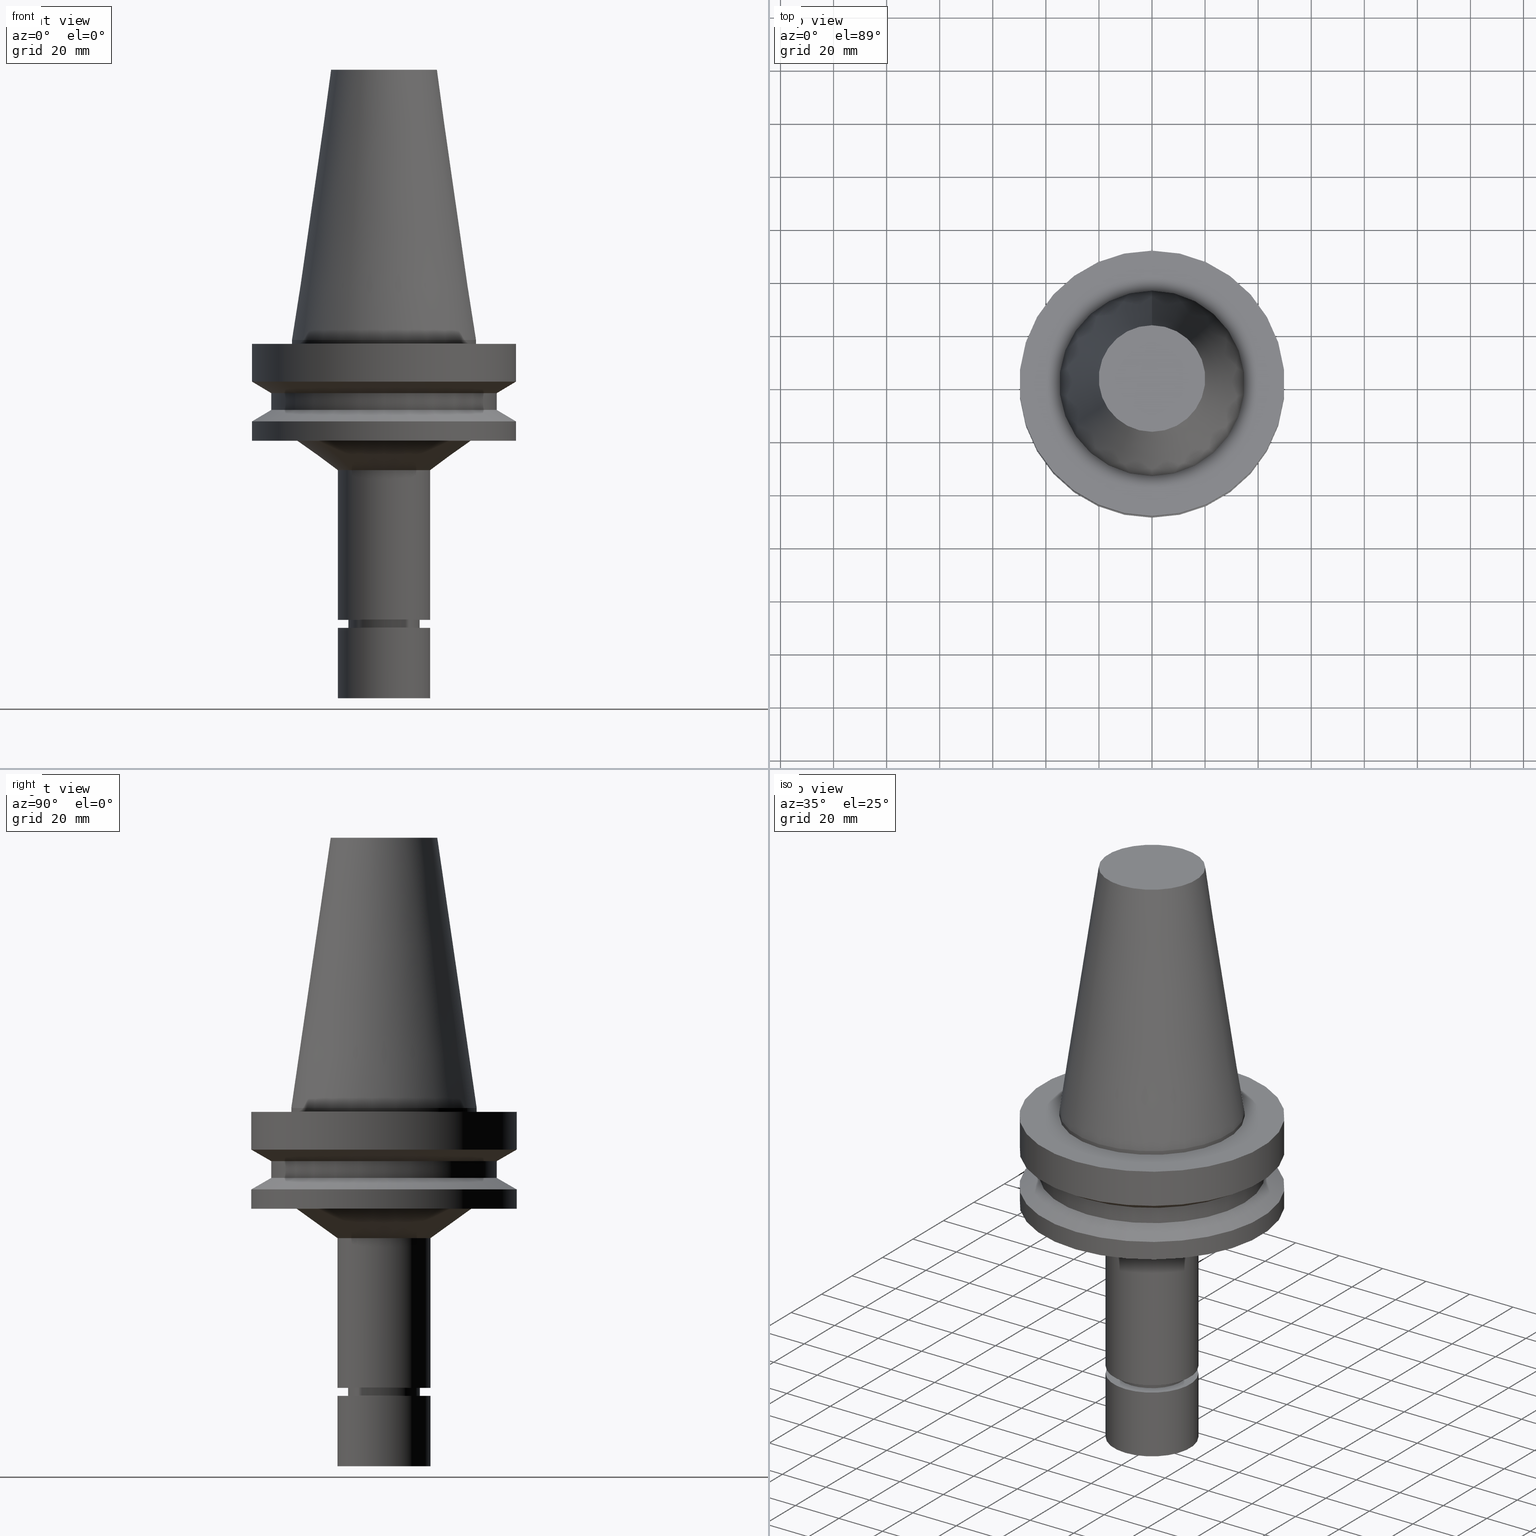
[diagram: canonical four-view strip — front | top / right | iso, engineering-drawing reading convention]
A machine part, canonical four-view strip (front | top / right | iso — engineering-drawing reading convention). The complete STEP part file that produces these views, byte-faithful:
ISO-10303-21;
HEADER;
FILE_DESCRIPTION((''),'1');
FILE_NAME('V:/90_\X2\53D65F9730C730FC30BF\X0\/00_\X2\6DE18DEF30C730FC30BF\X0\/ALL/BBT-BKUS\X2\FF76FF80FF9BFF78FF9E752852A05DE556F3\X0\201801/BBT50-MEGAER/BBT50-MEGAER20-135NL.stp','2018-02-02T08:00:37',(''),(''),'Spatial Interop R21 SP3','Kubotek KeyCreator 2011 V10.0.2 (22737)',' ');
FILE_SCHEMA(('automotive_design'));
ENDSEC;
DATA;
#1=MECHANICAL_DESIGN_GEOMETRIC_PRESENTATION_REPRESENTATION(' ',(#14,#15,#16,#17,#18,#19,#20,#21,#22,#23,#24,#25,#26,#27,#28,#29,#30,#31,#32,#33,#34,#35,#36,#37,#38,#39,#40,#41,#42,#43,#44,#45,#46,#47,#48,#49,#50,#51,#52,#53,#54,#55),#10);
#2=PRODUCT_DEFINITION_CONTEXT('',#56,'design');
#3=APPLICATION_PROTOCOL_DEFINITION('INTERNATIONAL STANDARD','automotive_design',1994,#56);
#4=PRODUCT_CATEGORY_RELATIONSHIP('NONE','NONE',#57,#58);
#5=SHAPE_DEFINITION_REPRESENTATION(#59,#60);
#6=PRODUCT_DEFINITION_CONTEXT('',#61,'design');
#7=APPLICATION_PROTOCOL_DEFINITION('INTERNATIONAL STANDARD','automotive_design',1994,#61);
#8=PRODUCT_CATEGORY_RELATIONSHIP('NONE','NONE',#62,#63);
#9=SHAPE_DEFINITION_REPRESENTATION(#64,#65);
#10= (GEOMETRIC_REPRESENTATION_CONTEXT(3)GLOBAL_UNCERTAINTY_ASSIGNED_CONTEXT((#68))GLOBAL_UNIT_ASSIGNED_CONTEXT((#70,#71,#72))REPRESENTATION_CONTEXT('NONE','WORKSPACE'));
#14=STYLED_ITEM('',(#74,#75),#76);
#15=STYLED_ITEM('',(#77,#78),#79);
#16=STYLED_ITEM('',(#80),#81);
#17=STYLED_ITEM('',(#82,#83),#84);
#18=STYLED_ITEM('',(#85,#86),#87);
#19=STYLED_ITEM('',(#88,#89),#90);
#20=STYLED_ITEM('',(#91),#92);
#21=STYLED_ITEM('',(#93),#94);
#22=STYLED_ITEM('',(#95),#96);
#23=STYLED_ITEM('',(#97,#98),#99);
#24=STYLED_ITEM('',(#100,#101),#102);
#25=STYLED_ITEM('',(#103,#104),#105);
#26=STYLED_ITEM('',(#106,#107),#108);
#27=STYLED_ITEM('',(#109),#110);
#28=STYLED_ITEM('',(#111),#112);
#29=STYLED_ITEM('',(#113,#114),#115);
#30=STYLED_ITEM('',(#116,#117),#118);
#31=STYLED_ITEM('',(#119),#120);
#32=STYLED_ITEM('',(#121),#122);
#33=STYLED_ITEM('',(#123,#124),#125);
#34=STYLED_ITEM('',(#126),#127);
#35=STYLED_ITEM('',(#128,#129),#130);
#36=STYLED_ITEM('',(#131),#132);
#37=STYLED_ITEM('',(#133,#134),#135);
#38=STYLED_ITEM('',(#136,#137),#138);
#39=STYLED_ITEM('',(#139),#140);
#40=STYLED_ITEM('',(#141,#142),#143);
#41=STYLED_ITEM('',(#144,#145),#146);
#42=STYLED_ITEM('',(#147,#148),#149);
#43=STYLED_ITEM('',(#150,#151),#152);
#44=STYLED_ITEM('',(#153),#154);
#45=STYLED_ITEM('',(#155),#156);
#46=STYLED_ITEM('',(#157),#158);
#47=STYLED_ITEM('',(#159,#160),#161);
#48=STYLED_ITEM('',(#162,#163),#164);
#49=STYLED_ITEM('',(#165),#166);
#50=STYLED_ITEM('',(#167),#168);
#51=STYLED_ITEM('',(#169),#170);
#52=STYLED_ITEM('',(#171,#172),#173);
#53=STYLED_ITEM('',(#174),#175);
#54=STYLED_ITEM('',(#176,#177),#178);
#55=STYLED_ITEM('',(#179),#180);
#56=APPLICATION_CONTEXT(' ');
#57=PRODUCT_CATEGORY('part','NONE');
#58=PRODUCT_RELATED_PRODUCT_CATEGORY('detail',' ',(#181));
#59=PRODUCT_DEFINITION_SHAPE('NONE','NONE',#182);
#60=ADVANCED_BREP_SHAPE_REPRESENTATION('Unnamed[1]',(#138,#183),#10);
#61=APPLICATION_CONTEXT(' ');
#62=PRODUCT_CATEGORY('part','NONE');
#63=PRODUCT_RELATED_PRODUCT_CATEGORY('detail',' ',(#184));
#64=PRODUCT_DEFINITION_SHAPE('NONE','NONE',#185);
#65=ADVANCED_BREP_SHAPE_REPRESENTATION('Unnamed[1]',(#90,#186),#10);
#68=UNCERTAINTY_MEASURE_WITH_UNIT(LENGTH_MEASURE(1.0E-006),#70,'','');
#70= (CONVERSION_BASED_UNIT('MILLIMETRE',#189)LENGTH_UNIT()NAMED_UNIT(#192));
#71= (NAMED_UNIT(#194)PLANE_ANGLE_UNIT()SI_UNIT($,.RADIAN.));
#72= (NAMED_UNIT(#194)SOLID_ANGLE_UNIT()SI_UNIT($,.STERADIAN.));
#74=PRESENTATION_STYLE_ASSIGNMENT((#200));
#75=PRESENTATION_STYLE_ASSIGNMENT((#201));
#76=ADVANCED_FACE('Unnamed[1]',(#202,#203),#204,.T.);
#77=PRESENTATION_STYLE_ASSIGNMENT((#205));
#78=PRESENTATION_STYLE_ASSIGNMENT((#206));
#79=ADVANCED_FACE('Unnamed[1]',(#207,#208),#209,.T.);
#80=PRESENTATION_STYLE_ASSIGNMENT((#210));
#81=EDGE_CURVE('Unnamed[1]',#211,#211,#212,.T.);
#82=PRESENTATION_STYLE_ASSIGNMENT((#213));
#83=PRESENTATION_STYLE_ASSIGNMENT((#214));
#84=ADVANCED_FACE('Unnamed[1]',(#215,#216),#217,.T.);
#85=PRESENTATION_STYLE_ASSIGNMENT((#218));
#86=PRESENTATION_STYLE_ASSIGNMENT((#219));
#87=ADVANCED_FACE('Unnamed[1]',(#220,#221),#222,.T.);
#88=PRESENTATION_STYLE_ASSIGNMENT((#223));
#89=PRESENTATION_STYLE_ASSIGNMENT((#224));
#90=MANIFOLD_SOLID_BREP('Unnamed[1]',#225);
#91=PRESENTATION_STYLE_ASSIGNMENT((#226));
#92=EDGE_CURVE('Unnamed[1]',#227,#227,#228,.T.);
#93=PRESENTATION_STYLE_ASSIGNMENT((#229));
#94=EDGE_CURVE('Unnamed[1]',#230,#230,#231,.T.);
#95=PRESENTATION_STYLE_ASSIGNMENT((#232));
#96=EDGE_CURVE('Unnamed[1]',#233,#233,#234,.T.);
#97=PRESENTATION_STYLE_ASSIGNMENT((#235));
#98=PRESENTATION_STYLE_ASSIGNMENT((#236));
#99=ADVANCED_FACE('Unnamed[1]',(#237,#238),#239,.T.);
#100=PRESENTATION_STYLE_ASSIGNMENT((#240));
#101=PRESENTATION_STYLE_ASSIGNMENT((#241));
#102=ADVANCED_FACE('Unnamed[1]',(#242,#243),#244,.T.);
#103=PRESENTATION_STYLE_ASSIGNMENT((#245));
#104=PRESENTATION_STYLE_ASSIGNMENT((#246));
#105=ADVANCED_FACE('Unnamed[1]',(#247,#248),#249,.T.);
#106=PRESENTATION_STYLE_ASSIGNMENT((#250));
#107=PRESENTATION_STYLE_ASSIGNMENT((#251));
#108=ADVANCED_FACE('Unnamed[1]',(#252),#253,.T.);
#109=PRESENTATION_STYLE_ASSIGNMENT((#254));
#110=EDGE_CURVE('Unnamed[1]',#255,#255,#256,.T.);
#111=PRESENTATION_STYLE_ASSIGNMENT((#257));
#112=EDGE_CURVE('Unnamed[1]',#258,#258,#259,.T.);
#113=PRESENTATION_STYLE_ASSIGNMENT((#260));
#114=PRESENTATION_STYLE_ASSIGNMENT((#261));
#115=ADVANCED_FACE('Unnamed[1]',(#262,#263),#264,.T.);
#116=PRESENTATION_STYLE_ASSIGNMENT((#265));
#117=PRESENTATION_STYLE_ASSIGNMENT((#266));
#118=ADVANCED_FACE('Unnamed[1]',(#267),#268,.T.);
#119=PRESENTATION_STYLE_ASSIGNMENT((#269));
#120=EDGE_CURVE('Unnamed[1]',#270,#270,#271,.T.);
#121=PRESENTATION_STYLE_ASSIGNMENT((#272));
#122=EDGE_CURVE('Unnamed[1]',#273,#273,#274,.T.);
#123=PRESENTATION_STYLE_ASSIGNMENT((#275));
#124=PRESENTATION_STYLE_ASSIGNMENT((#276));
#125=ADVANCED_FACE('Unnamed[1]',(#277,#278),#279,.T.);
#126=PRESENTATION_STYLE_ASSIGNMENT((#280));
#127=EDGE_CURVE('Unnamed[1]',#281,#281,#282,.T.);
#128=PRESENTATION_STYLE_ASSIGNMENT((#283));
#129=PRESENTATION_STYLE_ASSIGNMENT((#284));
#130=ADVANCED_FACE('Unnamed[1]',(#285,#286),#287,.T.);
#131=PRESENTATION_STYLE_ASSIGNMENT((#288));
#132=EDGE_CURVE('Unnamed[1]',#289,#289,#290,.T.);
#133=PRESENTATION_STYLE_ASSIGNMENT((#291));
#134=PRESENTATION_STYLE_ASSIGNMENT((#292));
#135=ADVANCED_FACE('Unnamed[1]',(#293,#294),#295,.T.);
#136=PRESENTATION_STYLE_ASSIGNMENT((#296));
#137=PRESENTATION_STYLE_ASSIGNMENT((#297));
#138=MANIFOLD_SOLID_BREP('Unnamed[1]',#298);
#139=PRESENTATION_STYLE_ASSIGNMENT((#299));
#140=EDGE_CURVE('Unnamed[1]',#300,#300,#301,.T.);
#141=PRESENTATION_STYLE_ASSIGNMENT((#302));
#142=PRESENTATION_STYLE_ASSIGNMENT((#303));
#143=ADVANCED_FACE('Unnamed[1]',(#304,#305),#306,.T.);
#144=PRESENTATION_STYLE_ASSIGNMENT((#307));
#145=PRESENTATION_STYLE_ASSIGNMENT((#308));
#146=ADVANCED_FACE('Unnamed[1]',(#309),#310,.T.);
#147=PRESENTATION_STYLE_ASSIGNMENT((#311));
#148=PRESENTATION_STYLE_ASSIGNMENT((#312));
#149=ADVANCED_FACE('Unnamed[1]',(#313,#314),#315,.T.);
#150=PRESENTATION_STYLE_ASSIGNMENT((#316));
#151=PRESENTATION_STYLE_ASSIGNMENT((#317));
#152=ADVANCED_FACE('Unnamed[1]',(#318,#319),#320,.T.);
#153=PRESENTATION_STYLE_ASSIGNMENT((#321));
#154=EDGE_CURVE('Unnamed[1]',#322,#322,#323,.T.);
#155=PRESENTATION_STYLE_ASSIGNMENT((#324));
#156=EDGE_CURVE('Unnamed[1]',#325,#325,#326,.T.);
#157=PRESENTATION_STYLE_ASSIGNMENT((#327));
#158=EDGE_CURVE('Unnamed[1]',#328,#328,#329,.T.);
#159=PRESENTATION_STYLE_ASSIGNMENT((#330));
#160=PRESENTATION_STYLE_ASSIGNMENT((#331));
#161=ADVANCED_FACE('Unnamed[1]',(#332,#333),#334,.T.);
#162=PRESENTATION_STYLE_ASSIGNMENT((#335));
#163=PRESENTATION_STYLE_ASSIGNMENT((#336));
#164=ADVANCED_FACE('Unnamed[1]',(#337,#338),#339,.T.);
#165=PRESENTATION_STYLE_ASSIGNMENT((#340));
#166=EDGE_CURVE('Unnamed[1]',#341,#341,#342,.T.);
#167=PRESENTATION_STYLE_ASSIGNMENT((#343));
#168=EDGE_CURVE('Unnamed[1]',#344,#344,#345,.T.);
#169=PRESENTATION_STYLE_ASSIGNMENT((#346));
#170=EDGE_CURVE('Unnamed[1]',#347,#347,#348,.T.);
#171=PRESENTATION_STYLE_ASSIGNMENT((#349));
#172=PRESENTATION_STYLE_ASSIGNMENT((#350));
#173=ADVANCED_FACE('Unnamed[1]',(#351),#352,.T.);
#174=PRESENTATION_STYLE_ASSIGNMENT((#353));
#175=EDGE_CURVE('Unnamed[1]',#354,#354,#355,.T.);
#176=PRESENTATION_STYLE_ASSIGNMENT((#356));
#177=PRESENTATION_STYLE_ASSIGNMENT((#357));
#178=ADVANCED_FACE('Unnamed[1]',(#358,#359),#360,.T.);
#179=PRESENTATION_STYLE_ASSIGNMENT((#361));
#180=EDGE_CURVE('Unnamed[1]',#362,#362,#363,.T.);
#181=PRODUCT('Unnamed[1]','Unnamed[1]','PART-Unnamed[1]-DESC',(#364));
#182=PRODUCT_DEFINITION('NONE','NONE',#365,#2);
#183=AXIS2_PLACEMENT_3D('',#366,#367,#368);
#184=PRODUCT('Unnamed[1]','Unnamed[1]','PART-Unnamed[1]-DESC',(#369));
#185=PRODUCT_DEFINITION('NONE','NONE',#370,#6);
#186=AXIS2_PLACEMENT_3D('',#371,#372,#373);
#189=LENGTH_MEASURE_WITH_UNIT(LENGTH_MEASURE(1.0),#374);
#192=DIMENSIONAL_EXPONENTS(1.0,0.0,0.0,0.0,0.0,0.0,0.0);
#194=DIMENSIONAL_EXPONENTS(0.0,0.0,0.0,0.0,0.0,0.0,0.0);
#200=SURFACE_STYLE_USAGE(.BOTH.,#375);
#201=CURVE_STYLE('',#376,POSITIVE_LENGTH_MEASURE(1000.0),#377);
#202=FACE_BOUND('',#378,.T.);
#203=FACE_BOUND('',#379,.T.);
#204=CYLINDRICAL_SURFACE('',#380,42.5);
#205=SURFACE_STYLE_USAGE(.BOTH.,#381);
#206=CURVE_STYLE('',#382,POSITIVE_LENGTH_MEASURE(1000.0),#383);
#207=FACE_BOUND('',#384,.T.);
#208=FACE_BOUND('',#385,.T.);
#209=CONICAL_SURFACE('',#386,27.5020833325942,0.144812498253157);
#210=CURVE_STYLE('',#387,POSITIVE_LENGTH_MEASURE(1000.0),#388);
#211=VERTEX_POINT('',#389);
#212=CIRCLE('',#390,13.4999999999908);
#213=SURFACE_STYLE_USAGE(.BOTH.,#391);
#214=CURVE_STYLE('',#392,POSITIVE_LENGTH_MEASURE(1000.0),#393);
#215=FACE_BOUND('',#394,.T.);
#216=FACE_BOUND('',#395,.T.);
#217=CONICAL_SURFACE('',#396,25.1818898842094,0.946630035979765);
#218=SURFACE_STYLE_USAGE(.BOTH.,#397);
#219=CURVE_STYLE('',#398,POSITIVE_LENGTH_MEASURE(1000.0),#399);
#220=FACE_BOUND('',#400,.T.);
#221=FACE_BOUND('',#401,.T.);
#222=CYLINDRICAL_SURFACE('',#402,34.925);
#223=SURFACE_STYLE_USAGE(.BOTH.,#403);
#224=CURVE_STYLE('',#404,POSITIVE_LENGTH_MEASURE(1000.0),#405);
#225=CLOSED_SHELL('',(#146,#108,#102));
#226=CURVE_STYLE('',#406,POSITIVE_LENGTH_MEASURE(1000.0),#407);
#227=VERTEX_POINT('',#408);
#228=CIRCLE('',#409,12.4999999999998);
#229=CURVE_STYLE('',#410,POSITIVE_LENGTH_MEASURE(1000.0),#411);
#230=VERTEX_POINT('',#412);
#231=CIRCLE('',#413,20.0791666651884);
#232=CURVE_STYLE('',#414,POSITIVE_LENGTH_MEASURE(1000.0),#415);
#233=VERTEX_POINT('',#416);
#234=CIRCLE('',#417,50.0);
#235=SURFACE_STYLE_USAGE(.BOTH.,#418);
#236=CURVE_STYLE('',#419,POSITIVE_LENGTH_MEASURE(1000.0),#420);
#237=FACE_BOUND('',#421,.T.);
#238=FACE_BOUND('',#422,.T.);
#239=CYLINDRICAL_SURFACE('',#423,13.4999999999956);
#240=SURFACE_STYLE_USAGE(.BOTH.,#424);
#241=CURVE_STYLE('',#425,POSITIVE_LENGTH_MEASURE(1000.0),#426);
#242=FACE_BOUND('',#427,.T.);
#243=FACE_BOUND('',#428,.T.);
#244=CYLINDRICAL_SURFACE('',#429,17.5);
#245=SURFACE_STYLE_USAGE(.BOTH.,#430);
#246=CURVE_STYLE('',#431,POSITIVE_LENGTH_MEASURE(1000.0),#432);
#247=FACE_BOUND('',#433,.T.);
#248=FACE_BOUND('',#434,.T.);
#249=CYLINDRICAL_SURFACE('',#435,50.0);
#250=SURFACE_STYLE_USAGE(.BOTH.,#436);
#251=CURVE_STYLE('',#437,POSITIVE_LENGTH_MEASURE(1000.0),#438);
#252=FACE_OUTER_BOUND('',#439,.T.);
#253=PLANE('',#440);
#254=CURVE_STYLE('',#441,POSITIVE_LENGTH_MEASURE(1000.0),#442);
#255=VERTEX_POINT('',#443);
#256=CIRCLE('',#444,12.4999999999999);
#257=CURVE_STYLE('',#445,POSITIVE_LENGTH_MEASURE(1000.0),#446);
#258=VERTEX_POINT('',#447);
#259=CIRCLE('',#448,17.5);
#260=SURFACE_STYLE_USAGE(.BOTH.,#449);
#261=CURVE_STYLE('',#450,POSITIVE_LENGTH_MEASURE(1000.0),#451);
#262=FACE_BOUND('',#452,.T.);
#263=FACE_OUTER_BOUND('',#453,.T.);
#264=PLANE('',#454);
#265=SURFACE_STYLE_USAGE(.BOTH.,#455);
#266=CURVE_STYLE('',#456,POSITIVE_LENGTH_MEASURE(1000.0),#457);
#267=FACE_OUTER_BOUND('',#458,.T.);
#268=PLANE('',#459);
#269=CURVE_STYLE('',#460,POSITIVE_LENGTH_MEASURE(1000.0),#461);
#270=VERTEX_POINT('',#462);
#271=CIRCLE('',#463,50.0);
#272=CURVE_STYLE('',#464,POSITIVE_LENGTH_MEASURE(1000.0),#465);
#273=VERTEX_POINT('',#466);
#274=CIRCLE('',#467,34.925);
#275=SURFACE_STYLE_USAGE(.BOTH.,#468);
#276=CURVE_STYLE('',#469,POSITIVE_LENGTH_MEASURE(1000.0),#470);
#277=FACE_BOUND('',#471,.T.);
#278=FACE_BOUND('',#472,.T.);
#279=CONICAL_SURFACE('',#473,46.25,1.04719755108882);
#280=CURVE_STYLE('',#474,POSITIVE_LENGTH_MEASURE(1000.0),#475);
#281=VERTEX_POINT('',#476);
#282=CIRCLE('',#477,42.5);
#283=SURFACE_STYLE_USAGE(.BOTH.,#478);
#284=CURVE_STYLE('',#479,POSITIVE_LENGTH_MEASURE(1000.0),#480);
#285=FACE_BOUND('',#481,.T.);
#286=FACE_BOUND('',#482,.T.);
#287=CYLINDRICAL_SURFACE('',#483,50.0);
#288=CURVE_STYLE('',#484,POSITIVE_LENGTH_MEASURE(1000.0),#485);
#289=VERTEX_POINT('',#486);
#290=CIRCLE('',#487,50.0);
#291=SURFACE_STYLE_USAGE(.BOTH.,#488);
#292=CURVE_STYLE('',#489,POSITIVE_LENGTH_MEASURE(1000.0),#490);
#293=FACE_BOUND('',#491,.T.);
#294=FACE_BOUND('',#492,.T.);
#295=CYLINDRICAL_SURFACE('',#493,12.4999999999999);
#296=SURFACE_STYLE_USAGE(.BOTH.,#494);
#297=CURVE_STYLE('',#495,POSITIVE_LENGTH_MEASURE(1000.0),#496);
#298=CLOSED_SHELL('',(#118,#164,#135,#161,#99,#178,#143,#84,#152,#130,#125,#76,#149,#105,#115,#87,#79,#173));
#299=CURVE_STYLE('',#497,POSITIVE_LENGTH_MEASURE(1000.0),#498);
#300=VERTEX_POINT('',#499);
#301=CIRCLE('',#500,17.5);
#302=SURFACE_STYLE_USAGE(.BOTH.,#501);
#303=CURVE_STYLE('',#502,POSITIVE_LENGTH_MEASURE(1000.0),#503);
#304=FACE_BOUND('',#504,.T.);
#305=FACE_BOUND('',#505,.T.);
#306=CYLINDRICAL_SURFACE('',#506,17.4999999999996);
#307=SURFACE_STYLE_USAGE(.BOTH.,#507);
#308=CURVE_STYLE('',#508,POSITIVE_LENGTH_MEASURE(1000.0),#509);
#309=FACE_OUTER_BOUND('',#510,.T.);
#310=PLANE('',#511);
#311=SURFACE_STYLE_USAGE(.BOTH.,#512);
#312=CURVE_STYLE('',#513,POSITIVE_LENGTH_MEASURE(1000.0),#514);
#313=FACE_BOUND('',#515,.T.);
#314=FACE_BOUND('',#516,.T.);
#315=CONICAL_SURFACE('',#517,46.25,1.04719755108882);
#316=SURFACE_STYLE_USAGE(.BOTH.,#518);
#317=CURVE_STYLE('',#519,POSITIVE_LENGTH_MEASURE(1000.0),#520);
#318=FACE_OUTER_BOUND('',#521,.T.);
#319=FACE_BOUND('',#522,.T.);
#320=PLANE('',#523);
#321=CURVE_STYLE('',#524,POSITIVE_LENGTH_MEASURE(1000.0),#525);
#322=VERTEX_POINT('',#526);
#323=CIRCLE('',#527,13.5000000000005);
#324=CURVE_STYLE('',#528,POSITIVE_LENGTH_MEASURE(1000.0),#529);
#325=VERTEX_POINT('',#530);
#326=CIRCLE('',#531,32.8637797684183);
#327=CURVE_STYLE('',#532,POSITIVE_LENGTH_MEASURE(1000.0),#533);
#328=VERTEX_POINT('',#534);
#329=CIRCLE('',#535,50.0);
#330=SURFACE_STYLE_USAGE(.BOTH.,#536);
#331=CURVE_STYLE('',#537,POSITIVE_LENGTH_MEASURE(1000.0),#538);
#332=FACE_BOUND('',#539,.T.);
#333=FACE_BOUND('',#540,.T.);
#334=CONICAL_SURFACE('',#541,13.0000000000002,1.04719755119489);
#335=SURFACE_STYLE_USAGE(.BOTH.,#542);
#336=CURVE_STYLE('',#543,POSITIVE_LENGTH_MEASURE(1000.0),#544);
#337=FACE_BOUND('',#545,.T.);
#338=FACE_BOUND('',#546,.T.);
#339=CONICAL_SURFACE('',#547,11.9499999999988,0.52359877559865);
#340=CURVE_STYLE('',#548,POSITIVE_LENGTH_MEASURE(1000.0),#549);
#341=VERTEX_POINT('',#550);
#342=CIRCLE('',#551,42.5);
#343=CURVE_STYLE('',#552,POSITIVE_LENGTH_MEASURE(1000.0),#553);
#344=VERTEX_POINT('',#554);
#345=CIRCLE('',#555,34.925);
#346=CURVE_STYLE('',#556,POSITIVE_LENGTH_MEASURE(1000.0),#557);
#347=VERTEX_POINT('',#558);
#348=CIRCLE('',#559,17.5000000000006);
#349=SURFACE_STYLE_USAGE(.BOTH.,#560);
#350=CURVE_STYLE('',#561,POSITIVE_LENGTH_MEASURE(1000.0),#562);
#351=FACE_OUTER_BOUND('',#563,.T.);
#352=PLANE('',#564);
#353=CURVE_STYLE('',#565,POSITIVE_LENGTH_MEASURE(1000.0),#566);
#354=VERTEX_POINT('',#567);
#355=CIRCLE('',#568,11.3999999999977);
#356=SURFACE_STYLE_USAGE(.BOTH.,#569);
#357=CURVE_STYLE('',#570,POSITIVE_LENGTH_MEASURE(1000.0),#571);
#358=FACE_OUTER_BOUND('',#572,.T.);
#359=FACE_BOUND('',#573,.T.);
#360=PLANE('',#574);
#361=CURVE_STYLE('',#575,POSITIVE_LENGTH_MEASURE(1000.0),#576);
#362=VERTEX_POINT('',#577);
#363=CIRCLE('',#578,17.4999999999986);
#364=PRODUCT_CONTEXT('',#56,'mechanical');
#365=PRODUCT_DEFINITION_FORMATION_WITH_SPECIFIED_SOURCE(' ','NONE',#181,.NOT_KNOWN.);
#366=CARTESIAN_POINT('',(0.0,0.0,0.0));
#367=DIRECTION('',(0.0,0.0,1.0));
#368=DIRECTION('',(1.0,0.0,0.0));
#369=PRODUCT_CONTEXT('',#61,'mechanical');
#370=PRODUCT_DEFINITION_FORMATION_WITH_SPECIFIED_SOURCE(' ','NONE',#184,.NOT_KNOWN.);
#371=CARTESIAN_POINT('',(0.0,0.0,0.0));
#372=DIRECTION('',(0.0,0.0,1.0));
#373=DIRECTION('',(1.0,0.0,0.0));
#374= (NAMED_UNIT(#192)LENGTH_UNIT()SI_UNIT(.MILLI.,.METRE.));
#375=SURFACE_SIDE_STYLE('',(#580));
#376=DRAUGHTING_PRE_DEFINED_CURVE_FONT('continuous');
#377=COLOUR_RGB('',0.0,1.0,0.0);
#378=EDGE_LOOP('',(#581));
#379=EDGE_LOOP('',(#582));
#380=AXIS2_PLACEMENT_3D('',#583,#584,#585);
#381=SURFACE_SIDE_STYLE('',(#586));
#382=DRAUGHTING_PRE_DEFINED_CURVE_FONT('continuous');
#383=COLOUR_RGB('',0.0,1.0,0.0);
#384=EDGE_LOOP('',(#587));
#385=EDGE_LOOP('',(#588));
#386=AXIS2_PLACEMENT_3D('',#589,#590,#591);
#387=DRAUGHTING_PRE_DEFINED_CURVE_FONT('continuous');
#388=COLOUR_RGB('',0.0,1.0,0.0);
#389=CARTESIAN_POINT('',(6.46001186550226E-015,13.4999999999908,-105.5));
#390=AXIS2_PLACEMENT_3D('',#592,#593,#594);
#391=SURFACE_SIDE_STYLE('',(#595));
#392=DRAUGHTING_PRE_DEFINED_CURVE_FONT('continuous');
#393=COLOUR_RGB('',0.0,1.0,0.0);
#394=EDGE_LOOP('',(#596));
#395=EDGE_LOOP('',(#597));
#396=AXIS2_PLACEMENT_3D('',#598,#599,#600);
#397=SURFACE_SIDE_STYLE('',(#601));
#398=DRAUGHTING_PRE_DEFINED_CURVE_FONT('continuous');
#399=COLOUR_RGB('',0.0,1.0,0.0);
#400=EDGE_LOOP('',(#602));
#401=EDGE_LOOP('',(#603));
#402=AXIS2_PLACEMENT_3D('',#604,#605,#606);
#403=SURFACE_SIDE_STYLE('',(#607));
#404=DRAUGHTING_PRE_DEFINED_CURVE_FONT('continuous');
#405=COLOUR_RGB('',0.0,1.0,0.0);
#406=DRAUGHTING_PRE_DEFINED_CURVE_FONT('continuous');
#407=COLOUR_RGB('',0.0,1.0,0.0);
#408=CARTESIAN_POINT('',(7.54962568640258E-015,12.4999999999998,-123.294744111672));
#409=AXIS2_PLACEMENT_3D('',#608,#609,#610);
#410=DRAUGHTING_PRE_DEFINED_CURVE_FONT('continuous');
#411=COLOUR_RGB('',0.0,1.0,0.0);
#412=CARTESIAN_POINT('',(-6.23345220766003E-015,20.0791666651884,101.8));
#413=AXIS2_PLACEMENT_3D('',#611,#612,#613);
#414=DRAUGHTING_PRE_DEFINED_CURVE_FONT('continuous');
#415=COLOUR_RGB('',0.0,1.0,0.0);
#416=CARTESIAN_POINT('',(9.61347737330674E-016,50.0,-15.7));
#417=AXIS2_PLACEMENT_3D('',#614,#615,#616);
#418=SURFACE_SIDE_STYLE('',(#617));
#419=DRAUGHTING_PRE_DEFINED_CURVE_FONT('continuous');
#420=COLOUR_RGB('',0.0,1.0,0.0);
#421=EDGE_LOOP('',(#618));
#422=EDGE_LOOP('',(#619));
#423=AXIS2_PLACEMENT_3D('',#620,#621,#622);
#424=SURFACE_SIDE_STYLE('',(#623));
#425=DRAUGHTING_PRE_DEFINED_CURVE_FONT('continuous');
#426=COLOUR_RGB('',0.0,1.0,0.0);
#427=EDGE_LOOP('',(#624));
#428=EDGE_LOOP('',(#625));
#429=AXIS2_PLACEMENT_3D('',#626,#627,#628);
#430=SURFACE_SIDE_STYLE('',(#629));
#431=DRAUGHTING_PRE_DEFINED_CURVE_FONT('continuous');
#432=COLOUR_RGB('',0.0,1.0,0.0);
#433=EDGE_LOOP('',(#630));
#434=EDGE_LOOP('',(#631));
#435=AXIS2_PLACEMENT_3D('',#632,#633,#634);
#436=SURFACE_SIDE_STYLE('',(#635));
#437=DRAUGHTING_PRE_DEFINED_CURVE_FONT('continuous');
#438=COLOUR_RGB('',0.0,1.0,0.0);
#439=EDGE_LOOP('',(#636));
#440=AXIS2_PLACEMENT_3D('',#637,#638,#639);
#441=DRAUGHTING_PRE_DEFINED_CURVE_FONT('continuous');
#442=COLOUR_RGB('',0.0,1.0,0.0);
#443=CARTESIAN_POINT('',(6.85187894896067E-015,12.4999999999999,-111.899675134597));
#444=AXIS2_PLACEMENT_3D('',#640,#641,#642);
#445=DRAUGHTING_PRE_DEFINED_CURVE_FONT('continuous');
#446=COLOUR_RGB('',0.0,1.0,0.0);
#447=CARTESIAN_POINT('',(6.64370981970575E-015,17.5,-108.500015258789));
#448=AXIS2_PLACEMENT_3D('',#643,#644,#645);
#449=SURFACE_SIDE_STYLE('',(#646));
#450=DRAUGHTING_PRE_DEFINED_CURVE_FONT('continuous');
#451=COLOUR_RGB('',0.0,1.0,0.0);
#452=EDGE_LOOP('',(#647));
#453=EDGE_LOOP('',(#648));
#454=AXIS2_PLACEMENT_3D('',#649,#650,#651);
#455=SURFACE_SIDE_STYLE('',(#652));
#456=DRAUGHTING_PRE_DEFINED_CURVE_FONT('continuous');
#457=COLOUR_RGB('',0.0,1.0,0.0);
#458=EDGE_LOOP('',(#653));
#459=AXIS2_PLACEMENT_3D('',#654,#655,#656);
#460=DRAUGHTING_PRE_DEFINED_CURVE_FONT('continuous');
#461=COLOUR_RGB('',0.0,1.0,0.0);
#462=CARTESIAN_POINT('',(1.87983283669119E-015,50.0,-30.7000000000001));
#463=AXIS2_PLACEMENT_3D('',#657,#658,#659);
#464=DRAUGHTING_PRE_DEFINED_CURVE_FONT('continuous');
#465=COLOUR_RGB('',0.0,1.0,0.0);
#466=CARTESIAN_POINT('',(9.18485099360511E-017,34.925,-1.5));
#467=AXIS2_PLACEMENT_3D('',#660,#661,#662);
#468=SURFACE_SIDE_STYLE('',(#663));
#469=DRAUGHTING_PRE_DEFINED_CURVE_FONT('continuous');
#470=COLOUR_RGB('',0.0,1.0,0.0);
#471=EDGE_LOOP('',(#664));
#472=EDGE_LOOP('',(#665));
#473=AXIS2_PLACEMENT_3D('',#666,#667,#668);
#474=DRAUGHTING_PRE_DEFINED_CURVE_FONT('continuous');
#475=COLOUR_RGB('',0.0,1.0,0.0);
#476=CARTESIAN_POINT('',(1.61468902694397E-015,42.5,-26.3698729800001));
#477=AXIS2_PLACEMENT_3D('',#669,#670,#671);
#478=SURFACE_SIDE_STYLE('',(#672));
#479=DRAUGHTING_PRE_DEFINED_CURVE_FONT('continuous');
#480=COLOUR_RGB('',0.0,1.0,0.0);
#481=EDGE_LOOP('',(#673));
#482=EDGE_LOOP('',(#674));
#483=AXIS2_PLACEMENT_3D('',#675,#676,#677);
#484=DRAUGHTING_PRE_DEFINED_CURVE_FONT('continuous');
#485=COLOUR_RGB('',0.0,1.0,0.0);
#486=CARTESIAN_POINT('',(2.32682891837996E-015,50.0,-37.9999999999998));
#487=AXIS2_PLACEMENT_3D('',#678,#679,#680);
#488=SURFACE_SIDE_STYLE('',(#681));
#489=DRAUGHTING_PRE_DEFINED_CURVE_FONT('continuous');
#490=COLOUR_RGB('',0.0,1.0,0.0);
#491=EDGE_LOOP('',(#682));
#492=EDGE_LOOP('',(#683));
#493=AXIS2_PLACEMENT_3D('',#684,#685,#686);
#494=SURFACE_SIDE_STYLE('',(#687));
#495=DRAUGHTING_PRE_DEFINED_CURVE_FONT('continuous');
#496=COLOUR_RGB('',0.0,1.0,0.0);
#497=DRAUGHTING_PRE_DEFINED_CURVE_FONT('continuous');
#498=COLOUR_RGB('',0.0,1.0,0.0);
#499=CARTESIAN_POINT('',(8.26636589424463E-015,17.5,-135.0));
#500=AXIS2_PLACEMENT_3D('',#688,#689,#690);
#501=SURFACE_SIDE_STYLE('',(#691));
#502=DRAUGHTING_PRE_DEFINED_CURVE_FONT('continuous');
#503=COLOUR_RGB('',0.0,1.0,0.0);
#504=EDGE_LOOP('',(#692));
#505=EDGE_LOOP('',(#693));
#506=AXIS2_PLACEMENT_3D('',#694,#695,#696);
#507=SURFACE_SIDE_STYLE('',(#697));
#508=DRAUGHTING_PRE_DEFINED_CURVE_FONT('continuous');
#509=COLOUR_RGB('',0.0,1.0,0.0);
#510=EDGE_LOOP('',(#698));
#511=AXIS2_PLACEMENT_3D('',#699,#700,#701);
#512=SURFACE_SIDE_STYLE('',(#702));
#513=DRAUGHTING_PRE_DEFINED_CURVE_FONT('continuous');
#514=COLOUR_RGB('',0.0,1.0,0.0);
#515=EDGE_LOOP('',(#703));
#516=EDGE_LOOP('',(#704));
#517=AXIS2_PLACEMENT_3D('',#705,#706,#707);
#518=SURFACE_SIDE_STYLE('',(#708));
#519=DRAUGHTING_PRE_DEFINED_CURVE_FONT('continuous');
#520=COLOUR_RGB('',0.0,1.0,0.0);
#521=EDGE_LOOP('',(#709));
#522=EDGE_LOOP('',(#710));
#523=AXIS2_PLACEMENT_3D('',#711,#712,#713);
#524=DRAUGHTING_PRE_DEFINED_CURVE_FONT('continuous');
#525=COLOUR_RGB('',0.0,1.0,0.0);
#526=CARTESIAN_POINT('',(6.81652644100301E-015,13.5000000000005,-111.322324865405));
#527=AXIS2_PLACEMENT_3D('',#714,#715,#716);
#528=DRAUGHTING_PRE_DEFINED_CURVE_FONT('continuous');
#529=COLOUR_RGB('',0.0,1.0,0.0);
#530=CARTESIAN_POINT('',(2.32682891837996E-015,32.8637797684183,-37.9999999999998));
#531=AXIS2_PLACEMENT_3D('',#717,#718,#719);
#532=DRAUGHTING_PRE_DEFINED_CURVE_FONT('continuous');
#533=COLOUR_RGB('',0.0,1.0,0.0);
#534=CARTESIAN_POINT('',(9.18485099360509E-017,50.0,-1.49999999999999));
#535=AXIS2_PLACEMENT_3D('',#720,#721,#722);
#536=SURFACE_SIDE_STYLE('',(#723));
#537=DRAUGHTING_PRE_DEFINED_CURVE_FONT('continuous');
#538=COLOUR_RGB('',0.0,1.0,0.0);
#539=EDGE_LOOP('',(#724));
#540=EDGE_LOOP('',(#725));
#541=AXIS2_PLACEMENT_3D('',#726,#727,#728);
#542=SURFACE_SIDE_STYLE('',(#729));
#543=DRAUGHTING_PRE_DEFINED_CURVE_FONT('continuous');
#544=COLOUR_RGB('',0.0,1.0,0.0);
#545=EDGE_LOOP('',(#730));
#546=EDGE_LOOP('',(#731));
#547=AXIS2_PLACEMENT_3D('',#732,#733,#734);
#548=DRAUGHTING_PRE_DEFINED_CURVE_FONT('continuous');
#549=COLOUR_RGB('',0.0,1.0,0.0);
#550=CARTESIAN_POINT('',(1.2264915470779E-015,42.5,-20.03012702));
#551=AXIS2_PLACEMENT_3D('',#735,#736,#737);
#552=DRAUGHTING_PRE_DEFINED_CURVE_FONT('continuous');
#553=COLOUR_RGB('',0.0,1.0,0.0);
#554=CARTESIAN_POINT('',(-4.30483861169435E-031,34.925,4.27707894602213E-015));
#555=AXIS2_PLACEMENT_3D('',#738,#739,#740);
#556=DRAUGHTING_PRE_DEFINED_CURVE_FONT('continuous');
#557=COLOUR_RGB('',0.0,1.0,0.0);
#558=CARTESIAN_POINT('',(3.00438088139649E-015,17.5000000000006,-49.0652632822501));
#559=AXIS2_PLACEMENT_3D('',#741,#742,#743);
#560=SURFACE_SIDE_STYLE('',(#744));
#561=DRAUGHTING_PRE_DEFINED_CURVE_FONT('continuous');
#562=COLOUR_RGB('',0.0,1.0,0.0);
#563=EDGE_LOOP('',(#745));
#564=AXIS2_PLACEMENT_3D('',#746,#747,#748);
#565=DRAUGHTING_PRE_DEFINED_CURVE_FONT('continuous');
#566=COLOUR_RGB('',0.0,1.0,0.0);
#567=CARTESIAN_POINT('',(7.66628896266244E-015,11.3999999999978,-125.2));
#568=AXIS2_PLACEMENT_3D('',#749,#750,#751);
#569=SURFACE_SIDE_STYLE('',(#752));
#570=DRAUGHTING_PRE_DEFINED_CURVE_FONT('continuous');
#571=COLOUR_RGB('',0.0,1.0,0.0);
#572=EDGE_LOOP('',(#753));
#573=EDGE_LOOP('',(#754));
#574=AXIS2_PLACEMENT_3D('',#755,#756,#757);
#575=DRAUGHTING_PRE_DEFINED_CURVE_FONT('continuous');
#576=COLOUR_RGB('',0.0,1.0,0.0);
#577=CARTESIAN_POINT('',(6.46001186550228E-015,17.4999999999986,-105.5));
#578=AXIS2_PLACEMENT_3D('',#758,#759,#760);
#580=SURFACE_STYLE_FILL_AREA(#761);
#581=ORIENTED_EDGE('',*,*,#166,.F.);
#582=ORIENTED_EDGE('',*,*,#127,.T.);
#583=CARTESIAN_POINT('',(1.42059028701093E-015,1.49336428855796E-014,-23.2));
#584=DIRECTION('',(-6.12323399573677E-017,-1.52619998477336E-017,1.0));
#585=DIRECTION('',(-5.76168069387474E-033,1.0,1.52619998477336E-017));
#586=SURFACE_STYLE_FILL_AREA(#762);
#587=ORIENTED_EDGE('',*,*,#94,.F.);
#588=ORIENTED_EDGE('',*,*,#168,.T.);
#589=CARTESIAN_POINT('',(-3.11672610383001E-015,1.38027286968626E-014,50.9));
#590=DIRECTION('',(6.12323399573677E-017,1.52619998477336E-017,-1.0));
#591=DIRECTION('',(-5.76168069387474E-033,1.0,1.52619998477336E-017));
#592=CARTESIAN_POINT('',(6.46001186550226E-015,1.61897054730481E-014,-105.5));
#593=DIRECTION('',(-6.12323399573676E-017,-1.52619998477336E-017,1.0));
#594=DIRECTION('',(-5.76168069387474E-033,1.0,1.52619998477336E-017));
#595=SURFACE_STYLE_FILL_AREA(#763);
#596=ORIENTED_EDGE('',*,*,#156,.F.);
#597=ORIENTED_EDGE('',*,*,#170,.T.);
#598=CARTESIAN_POINT('',(2.66560489988822E-015,1.52439595065905E-014,-43.532631641125));
#599=DIRECTION('',(-6.12323399573677E-017,-1.52619998477336E-017,1.0));
#600=DIRECTION('',(-5.76168069387474E-033,1.0,1.52619998477336E-017));
#601=SURFACE_STYLE_FILL_AREA(#764);
#602=ORIENTED_EDGE('',*,*,#168,.F.);
#603=ORIENTED_EDGE('',*,*,#122,.T.);
#604=CARTESIAN_POINT('',(4.59242549680257E-017,1.4591010988998E-014,-0.75));
#605=DIRECTION('',(-6.12323399573677E-017,-1.52619998477336E-017,1.0));
#606=DIRECTION('',(-5.76168069387474E-033,1.0,1.52619998477336E-017));
#607=SURFACE_STYLE_FILL_AREA(#765);
#608=CARTESIAN_POINT('',(7.54962568640258E-015,1.64612888549709E-014,-123.294744111672));
#609=DIRECTION('',(-6.12323399573677E-017,-1.52619998477336E-017,1.0));
#610=DIRECTION('',(-5.76168069387474E-033,1.0,1.52619998477336E-017));
#611=CARTESIAN_POINT('',(-6.23345220766003E-015,1.30258929046129E-014,101.8));
#612=DIRECTION('',(-6.12323399573677E-017,-1.52619998477336E-017,1.0));
#613=DIRECTION('',(-5.76168069387474E-033,1.0,1.52619998477336E-017));
#614=CARTESIAN_POINT('',(9.61347737330675E-016,1.48191778867216E-014,-15.7));
#615=DIRECTION('',(-6.12323399573677E-017,-1.52619998477336E-017,1.0));
#616=DIRECTION('',(-5.76168069387474E-033,1.0,1.52619998477336E-017));
#617=SURFACE_STYLE_FILL_AREA(#766);
#618=ORIENTED_EDGE('',*,*,#81,.F.);
#619=ORIENTED_EDGE('',*,*,#154,.T.);
#620=CARTESIAN_POINT('',(6.63826915325264E-015,1.62341356336527E-014,-108.411162432702));
#621=DIRECTION('',(-6.12323399573677E-017,-1.52619998477336E-017,1.0));
#622=DIRECTION('',(-5.76168069387474E-033,1.0,1.52619998477336E-017));
#623=SURFACE_STYLE_FILL_AREA(#767);
#624=ORIENTED_EDGE('',*,*,#140,.F.);
#625=ORIENTED_EDGE('',*,*,#112,.T.);
#626=CARTESIAN_POINT('',(7.45503785697519E-015,1.64377130870136E-014,-121.750007629394));
#627=DIRECTION('',(6.12323399573677E-017,1.52619998477336E-017,-1.0));
#628=DIRECTION('',(-5.76168069387474E-033,1.0,1.52619998477336E-017));
#629=SURFACE_STYLE_FILL_AREA(#768);
#630=ORIENTED_EDGE('',*,*,#158,.F.);
#631=ORIENTED_EDGE('',*,*,#96,.T.);
#632=CARTESIAN_POINT('',(5.26598123633363E-016,1.47108176878027E-014,-8.60000000000002));
#633=DIRECTION('',(-6.12323399573677E-017,-1.52619998477336E-017,1.0));
#634=DIRECTION('',(-5.76168069387474E-033,1.0,1.52619998477336E-017));
#635=SURFACE_STYLE_FILL_AREA(#769);
#636=ORIENTED_EDGE('',*,*,#112,.F.);
#637=CARTESIAN_POINT('',(6.64370981970575E-015,8.75000000000002,-108.500015258789));
#638=DIRECTION('',(-6.12323399573677E-017,-1.22464679914735E-016,1.0));
#639=DIRECTION('',(1.23259516440783E-032,-1.0,-1.22464679914735E-016));
#640=CARTESIAN_POINT('',(6.85187894896067E-015,1.62873773139779E-014,-111.899675134597));
#641=DIRECTION('',(-6.12323399573677E-017,-1.52619998477336E-017,1.0));
#642=DIRECTION('',(-5.76168069387474E-033,1.0,1.52619998477336E-017));
#643=CARTESIAN_POINT('',(6.64370981970575E-015,1.6235491705471E-014,-108.500015258789));
#644=DIRECTION('',(6.12323399573677E-017,1.52619998477336E-017,-1.0));
#645=DIRECTION('',(-5.76168069387474E-033,1.0,1.52619998477336E-017));
#646=SURFACE_STYLE_FILL_AREA(#770);
#647=ORIENTED_EDGE('',*,*,#122,.F.);
#648=ORIENTED_EDGE('',*,*,#158,.T.);
#649=CARTESIAN_POINT('',(9.1848509936051E-017,42.4625,-1.49999999999999));
#650=DIRECTION('',(-6.12323399573677E-017,-1.22464679914735E-016,1.0));
#651=DIRECTION('',(-1.23259516440783E-032,1.0,1.22464679914735E-016));
#652=SURFACE_STYLE_FILL_AREA(#771);
#653=ORIENTED_EDGE('',*,*,#175,.F.);
#654=CARTESIAN_POINT('',(7.66628896266244E-015,5.69999999999889,-125.2));
#655=DIRECTION('',(6.12323399573677E-017,-1.73294621633193E-014,-1.0));
#656=DIRECTION('',(-1.05629636573194E-030,-1.0,1.73294621633193E-014));
#657=CARTESIAN_POINT('',(1.87983283669119E-015,1.50481078844376E-014,-30.7000000000001));
#658=DIRECTION('',(-6.12323399573677E-017,-1.52619998477336E-017,1.0));
#659=DIRECTION('',(-5.76168069387474E-033,1.0,1.52619998477336E-017));
#660=CARTESIAN_POINT('',(9.18485099360515E-017,1.46024574888838E-014,-1.5));
#661=DIRECTION('',(-6.12323399573677E-017,-1.52619998477336E-017,1.0));
#662=DIRECTION('',(-5.76168069387474E-033,1.0,1.52619998477336E-017));
#663=SURFACE_STYLE_FILL_AREA(#772);
#664=ORIENTED_EDGE('',*,*,#127,.F.);
#665=ORIENTED_EDGE('',*,*,#120,.T.);
#666=CARTESIAN_POINT('',(1.74726093181758E-015,1.50150646854777E-014,-28.5349364900001));
#667=DIRECTION('',(6.12323399573677E-017,1.52619998477336E-017,-1.0));
#668=DIRECTION('',(-5.76168069387474E-033,1.0,1.52619998477336E-017));
#669=CARTESIAN_POINT('',(1.61468902694397E-015,1.49820214865177E-014,-26.3698729800001));
#670=DIRECTION('',(-6.12323399573677E-017,-1.52619998477336E-017,1.0));
#671=DIRECTION('',(-5.76168069387474E-033,1.0,1.52619998477336E-017));
#672=SURFACE_STYLE_FILL_AREA(#773);
#673=ORIENTED_EDGE('',*,*,#120,.F.);
#674=ORIENTED_EDGE('',*,*,#132,.T.);
#675=CARTESIAN_POINT('',(2.10333087753557E-015,1.51038141838819E-014,-34.3499999999999));
#676=DIRECTION('',(-6.12323399573677E-017,-1.52619998477336E-017,1.0));
#677=DIRECTION('',(-5.76168069387474E-033,1.0,1.52619998477336E-017));
#678=CARTESIAN_POINT('',(2.32682891837996E-015,1.51595204833261E-014,-37.9999999999998));
#679=DIRECTION('',(-6.12323399573677E-017,-1.52619998477336E-017,1.0));
#680=DIRECTION('',(-5.76168069387474E-033,1.0,1.52619998477336E-017));
#681=SURFACE_STYLE_FILL_AREA(#774);
#682=ORIENTED_EDGE('',*,*,#110,.F.);
#683=ORIENTED_EDGE('',*,*,#92,.T.);
#684=CARTESIAN_POINT('',(7.20075231768163E-015,1.63743330844744E-014,-117.597209623135));
#685=DIRECTION('',(-6.12323399573677E-017,-1.52619998477336E-017,1.0));
#686=DIRECTION('',(-5.76168069387474E-033,1.0,1.52619998477336E-017));
#687=SURFACE_STYLE_FILL_AREA(#775);
#688=CARTESIAN_POINT('',(8.26636589424463E-015,1.66399344685563E-014,-135.0));
#689=DIRECTION('',(6.12323399573677E-017,1.52619998477336E-017,-1.0));
#690=DIRECTION('',(-5.76168069387474E-033,1.0,1.52619998477336E-017));
#691=SURFACE_STYLE_FILL_AREA(#776);
#692=ORIENTED_EDGE('',*,*,#170,.F.);
#693=ORIENTED_EDGE('',*,*,#180,.T.);
#694=CARTESIAN_POINT('',(4.73219637344938E-015,1.57590520014515E-014,-77.282631641125));
#695=DIRECTION('',(-6.12323399573677E-017,-1.52619998477336E-017,1.0));
#696=DIRECTION('',(-5.76168069387474E-033,1.0,1.52619998477336E-017));
#697=SURFACE_STYLE_FILL_AREA(#777);
#698=ORIENTED_EDGE('',*,*,#140,.T.);
#699=CARTESIAN_POINT('',(8.26636589424463E-015,8.75000000000002,-135.0));
#700=DIRECTION('',(6.12323399573677E-017,1.22464679914735E-016,-1.0));
#701=DIRECTION('',(-1.23259516440783E-032,1.0,1.22464679914735E-016));
#702=SURFACE_STYLE_FILL_AREA(#778);
#703=ORIENTED_EDGE('',*,*,#96,.F.);
#704=ORIENTED_EDGE('',*,*,#166,.T.);
#705=CARTESIAN_POINT('',(1.09391964220429E-015,1.48522210856816E-014,-17.86506351));
#706=DIRECTION('',(-6.12323399573677E-017,-1.52619998477336E-017,1.0));
#707=DIRECTION('',(-5.76168069387474E-033,1.0,1.52619998477336E-017));
#708=SURFACE_STYLE_FILL_AREA(#779);
#709=ORIENTED_EDGE('',*,*,#132,.F.);
#710=ORIENTED_EDGE('',*,*,#156,.T.);
#711=CARTESIAN_POINT('',(2.32682891837996E-015,41.4318898842092,-37.9999999999998));
#712=DIRECTION('',(6.12323399573677E-017,3.02497123217886E-015,-1.0));
#713=DIRECTION('',(1.90053219580803E-031,-1.0,-3.02497123217886E-015));
#714=CARTESIAN_POINT('',(6.81652644100301E-015,1.62785657942574E-014,-111.322324865405));
#715=DIRECTION('',(-6.12323399573677E-017,-1.52619998477336E-017,1.0));
#716=DIRECTION('',(-5.76168069387474E-033,1.0,1.52619998477336E-017));
#717=CARTESIAN_POINT('',(2.32682891837996E-015,1.51595204833261E-014,-37.9999999999998));
#718=DIRECTION('',(-6.12323399573677E-017,-1.52619998477336E-017,1.0));
#719=DIRECTION('',(-5.76168069387474E-033,1.0,1.52619998477336E-017));
#720=CARTESIAN_POINT('',(9.18485099360515E-017,1.46024574888838E-014,-1.5));
#721=DIRECTION('',(-6.12323399573677E-017,-1.52619998477336E-017,1.0));
#722=DIRECTION('',(-5.76168069387474E-033,1.0,1.52619998477336E-017));
#723=SURFACE_STYLE_FILL_AREA(#780);
#724=ORIENTED_EDGE('',*,*,#154,.F.);
#725=ORIENTED_EDGE('',*,*,#110,.T.);
#726=CARTESIAN_POINT('',(6.83420269498184E-015,1.62829715541176E-014,-111.611000000001));
#727=DIRECTION('',(-6.12323399573677E-017,-1.52619998477336E-017,1.0));
#728=DIRECTION('',(-5.76168069387474E-033,1.0,1.52619998477336E-017));
#729=SURFACE_STYLE_FILL_AREA(#781);
#730=ORIENTED_EDGE('',*,*,#92,.F.);
#731=ORIENTED_EDGE('',*,*,#175,.T.);
#732=CARTESIAN_POINT('',(7.60795732453251E-015,1.64758278625097E-014,-124.247372055836));
#733=DIRECTION('',(-6.12323399573677E-017,-1.52619998477336E-017,1.0));
#734=DIRECTION('',(-5.76168069387474E-033,1.0,1.52619998477336E-017));
#735=CARTESIAN_POINT('',(1.2264915470779E-015,1.48852642846415E-014,-20.03012702));
#736=DIRECTION('',(-6.12323399573677E-017,-1.52619998477336E-017,1.0));
#737=DIRECTION('',(-5.76168069387474E-033,1.0,1.52619998477336E-017));
#738=CARTESIAN_POINT('',(-1.79707006884519E-046,1.45795644891122E-014,1.78548169845537E-030));
#739=DIRECTION('',(-6.12323399573677E-017,-1.52619998477336E-017,1.0));
#740=DIRECTION('',(-5.76168069387474E-033,1.0,1.52619998477336E-017));
#741=CARTESIAN_POINT('',(3.00438088139649E-015,1.53283985298549E-014,-49.0652632822501));
#742=DIRECTION('',(-6.12323399573676E-017,-1.52619998477336E-017,1.0));
#743=DIRECTION('',(-5.76168069387474E-033,1.0,1.52619998477336E-017));
#744=SURFACE_STYLE_FILL_AREA(#782);
#745=ORIENTED_EDGE('',*,*,#94,.T.);
#746=CARTESIAN_POINT('',(-6.23345220766003E-015,10.0395833325942,101.8));
#747=DIRECTION('',(-6.12323399573677E-017,-1.22464679914735E-016,1.0));
#748=DIRECTION('',(-1.23259516440783E-032,1.0,1.22464679914735E-016));
#749=CARTESIAN_POINT('',(7.66628896266244E-015,1.64903668700485E-014,-125.2));
#750=DIRECTION('',(-6.12323399573677E-017,-1.52619998477336E-017,1.0));
#751=DIRECTION('',(-5.76168069387474E-033,1.0,1.52619998477336E-017));
#752=SURFACE_STYLE_FILL_AREA(#783);
#753=ORIENTED_EDGE('',*,*,#180,.F.);
#754=ORIENTED_EDGE('',*,*,#81,.T.);
#755=CARTESIAN_POINT('',(6.46001186550227E-015,15.4999999999947,-105.5));
#756=DIRECTION('',(6.12323399573677E-017,-7.44845225747511E-014,-1.0));
#757=DIRECTION('',(-4.55603445512861E-030,-1.0,7.44845225747511E-014));
#758=CARTESIAN_POINT('',(6.46001186550228E-015,1.61897054730481E-014,-105.5));
#759=DIRECTION('',(-6.12323399573677E-017,-1.52619998477336E-017,1.0));
#760=DIRECTION('',(-5.76168069387474E-033,1.0,1.52619998477336E-017));
#761=FILL_AREA_STYLE('',(#784));
#762=FILL_AREA_STYLE('',(#785));
#763=FILL_AREA_STYLE('',(#786));
#764=FILL_AREA_STYLE('',(#787));
#765=FILL_AREA_STYLE('',(#788));
#766=FILL_AREA_STYLE('',(#789));
#767=FILL_AREA_STYLE('',(#790));
#768=FILL_AREA_STYLE('',(#791));
#769=FILL_AREA_STYLE('',(#792));
#770=FILL_AREA_STYLE('',(#793));
#771=FILL_AREA_STYLE('',(#794));
#772=FILL_AREA_STYLE('',(#795));
#773=FILL_AREA_STYLE('',(#796));
#774=FILL_AREA_STYLE('',(#797));
#775=FILL_AREA_STYLE('',(#798));
#776=FILL_AREA_STYLE('',(#799));
#777=FILL_AREA_STYLE('',(#800));
#778=FILL_AREA_STYLE('',(#801));
#779=FILL_AREA_STYLE('',(#802));
#780=FILL_AREA_STYLE('',(#803));
#781=FILL_AREA_STYLE('',(#804));
#782=FILL_AREA_STYLE('',(#805));
#783=FILL_AREA_STYLE('',(#806));
#784=FILL_AREA_STYLE_COLOUR('',#807);
#785=FILL_AREA_STYLE_COLOUR('',#808);
#786=FILL_AREA_STYLE_COLOUR('',#809);
#787=FILL_AREA_STYLE_COLOUR('',#810);
#788=FILL_AREA_STYLE_COLOUR('',#811);
#789=FILL_AREA_STYLE_COLOUR('',#812);
#790=FILL_AREA_STYLE_COLOUR('',#813);
#791=FILL_AREA_STYLE_COLOUR('',#814);
#792=FILL_AREA_STYLE_COLOUR('',#815);
#793=FILL_AREA_STYLE_COLOUR('',#816);
#794=FILL_AREA_STYLE_COLOUR('',#817);
#795=FILL_AREA_STYLE_COLOUR('',#818);
#796=FILL_AREA_STYLE_COLOUR('',#819);
#797=FILL_AREA_STYLE_COLOUR('',#820);
#798=FILL_AREA_STYLE_COLOUR('',#821);
#799=FILL_AREA_STYLE_COLOUR('',#822);
#800=FILL_AREA_STYLE_COLOUR('',#823);
#801=FILL_AREA_STYLE_COLOUR('',#824);
#802=FILL_AREA_STYLE_COLOUR('',#825);
#803=FILL_AREA_STYLE_COLOUR('',#826);
#804=FILL_AREA_STYLE_COLOUR('',#827);
#805=FILL_AREA_STYLE_COLOUR('',#828);
#806=FILL_AREA_STYLE_COLOUR('',#829);
#807=COLOUR_RGB('',0.0,1.0,0.0);
#808=COLOUR_RGB('',0.0,1.0,0.0);
#809=COLOUR_RGB('',0.0,1.0,0.0);
#810=COLOUR_RGB('',0.0,1.0,0.0);
#811=COLOUR_RGB('',0.0,1.0,0.0);
#812=COLOUR_RGB('',0.0,1.0,0.0);
#813=COLOUR_RGB('',0.0,1.0,0.0);
#814=COLOUR_RGB('',0.0,1.0,0.0);
#815=COLOUR_RGB('',0.0,1.0,0.0);
#816=COLOUR_RGB('',0.0,1.0,0.0);
#817=COLOUR_RGB('',0.0,1.0,0.0);
#818=COLOUR_RGB('',0.0,1.0,0.0);
#819=COLOUR_RGB('',0.0,1.0,0.0);
#820=COLOUR_RGB('',0.0,1.0,0.0);
#821=COLOUR_RGB('',0.0,1.0,0.0);
#822=COLOUR_RGB('',0.0,1.0,0.0);
#823=COLOUR_RGB('',0.0,1.0,0.0);
#824=COLOUR_RGB('',0.0,1.0,0.0);
#825=COLOUR_RGB('',0.0,1.0,0.0);
#826=COLOUR_RGB('',0.0,1.0,0.0);
#827=COLOUR_RGB('',0.0,1.0,0.0);
#828=COLOUR_RGB('',0.0,1.0,0.0);
#829=COLOUR_RGB('',0.0,1.0,0.0);
ENDSEC;
END-ISO-10303-21;
